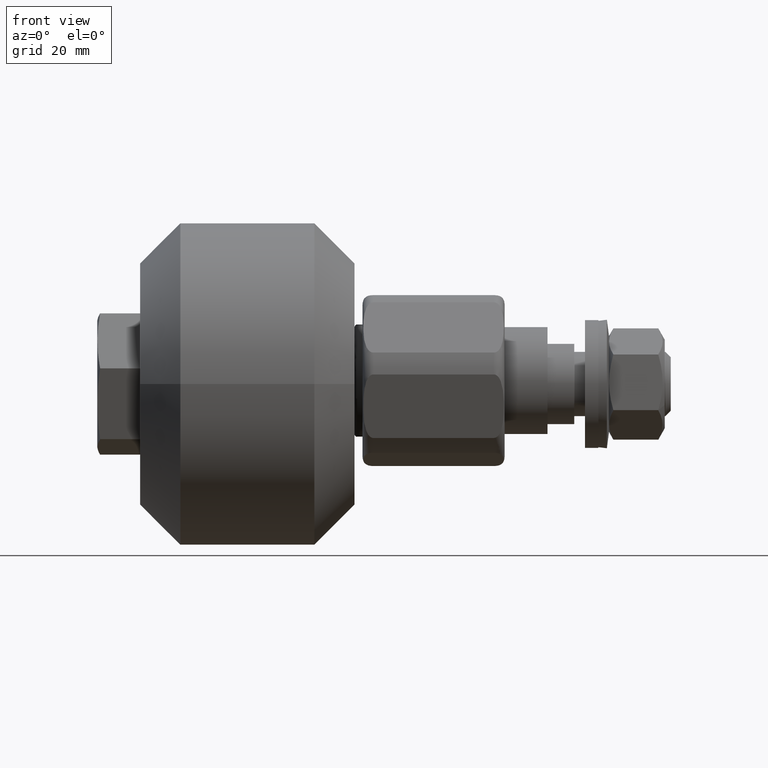
[diagram: clean part render]
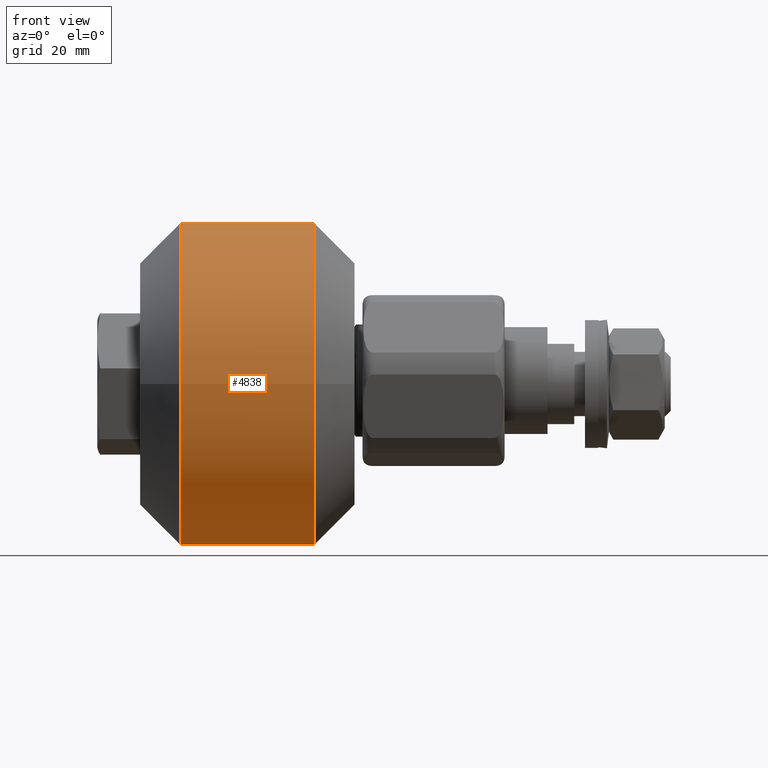
[diagram: same view with one face highlighted and labeled with its STEP entity id]
A machine part, front view. The second image highlights one B-rep face of the part: STEP entity #4838.
In plain terms, the highlighted cylindrical surface (bore or boss wall) has radius 30 mm, axis along (1, 0, 0).
Its self-contained STEP definition (entity closure, byte-faithful):
#318=CYLINDRICAL_SURFACE('',#5321,30.);
#582=FACE_OUTER_BOUND('',#855,.T.);
#855=EDGE_LOOP('',(#3309,#3310,#3311,#3312));
#1156=LINE('',#7319,#1446);
#1446=VECTOR('',#5913,30.);
#1741=CIRCLE('',#5320,30.);
#1742=CIRCLE('',#5322,30.);
#2008=VERTEX_POINT('',#7313);
#2009=VERTEX_POINT('',#7317);
#2529=EDGE_CURVE('',#2008,#2008,#1741,.T.);
#2531=EDGE_CURVE('',#2009,#2009,#1742,.T.);
#2532=EDGE_CURVE('',#2009,#2008,#1156,.T.);
#3309=ORIENTED_EDGE('',*,*,#2531,.F.);
#3310=ORIENTED_EDGE('',*,*,#2532,.T.);
#3311=ORIENTED_EDGE('',*,*,#2529,.T.);
#3312=ORIENTED_EDGE('',*,*,#2532,.F.);
#4838=ADVANCED_FACE('',(#582),#318,.T.);
#5320=AXIS2_PLACEMENT_3D('',#7314,#5906,#5907);
#5321=AXIS2_PLACEMENT_3D('',#7316,#5909,#5910);
#5322=AXIS2_PLACEMENT_3D('',#7318,#5911,#5912);
#5906=DIRECTION('center_axis',(1.,0.,0.));
#5907=DIRECTION('ref_axis',(0.,1.,0.));
#5909=DIRECTION('center_axis',(1.,0.,0.));
#5910=DIRECTION('ref_axis',(0.,1.,0.));
#5911=DIRECTION('center_axis',(1.,0.,0.));
#5912=DIRECTION('ref_axis',(0.,1.,0.));
#5913=DIRECTION('',(-1.,0.,0.));
#7313=CARTESIAN_POINT('',(-12.5,-30.,-3.67394039744206E-15));
#7314=CARTESIAN_POINT('Origin',(-12.5,0.,0.));
#7316=CARTESIAN_POINT('Origin',(0.,0.,0.));
#7317=CARTESIAN_POINT('',(12.5,-30.,-3.67394039744206E-15));
#7318=CARTESIAN_POINT('Origin',(12.5,0.,0.));
#7319=CARTESIAN_POINT('',(0.,-30.,-3.67394039744206E-15));